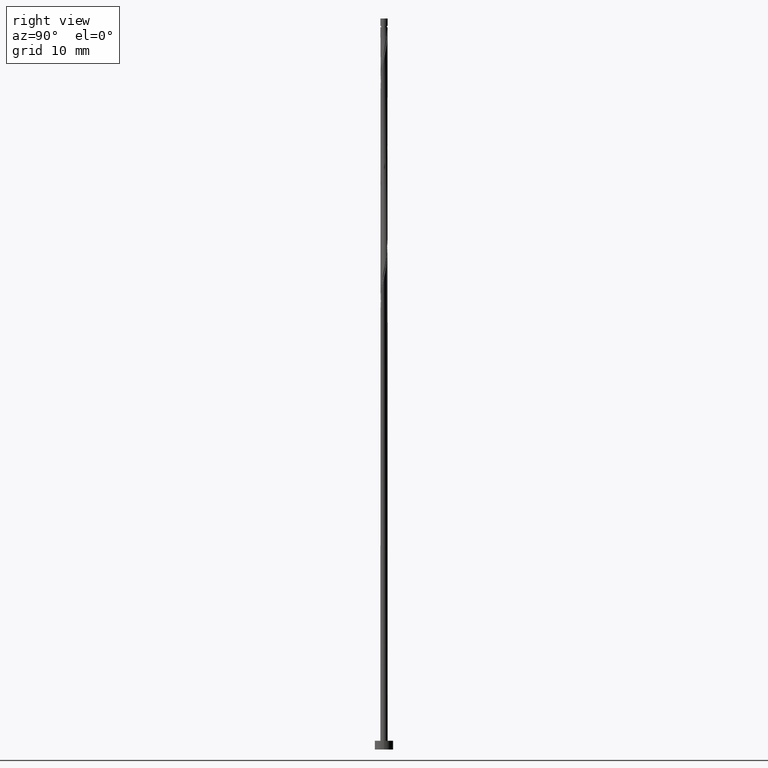
[diagram: clean part render]
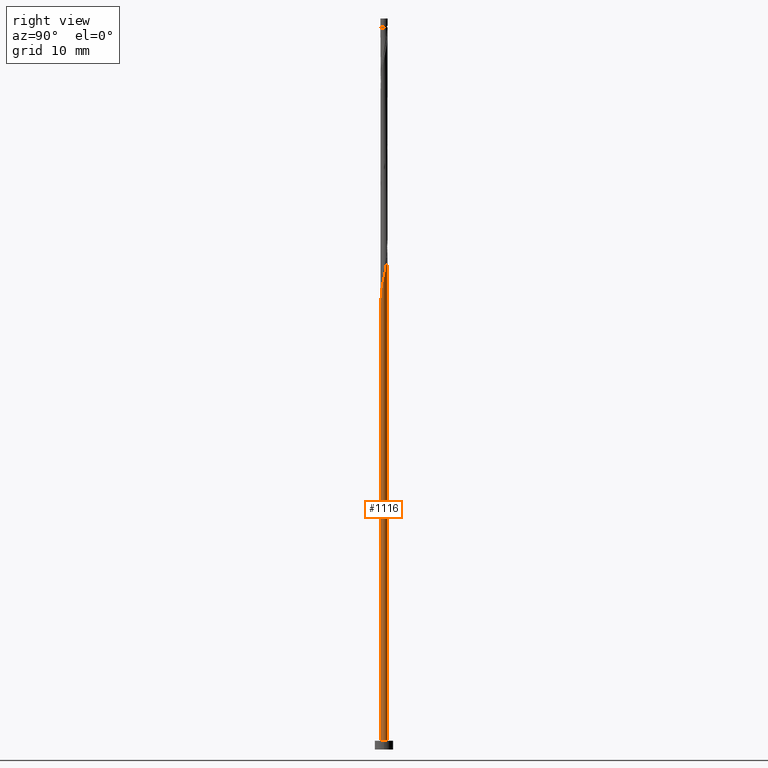
[diagram: same view with one face highlighted and labeled with its STEP entity id]
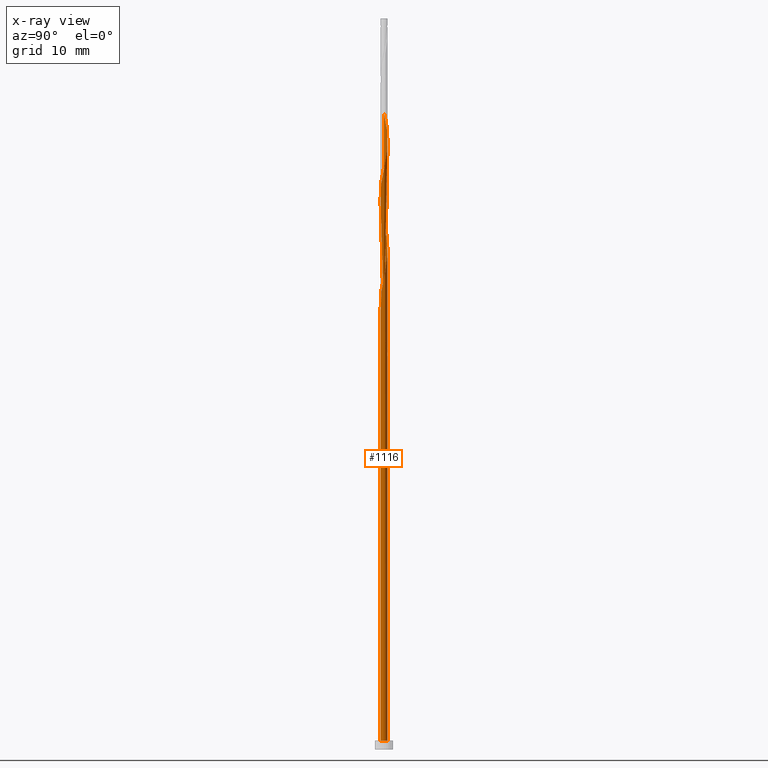
[diagram: x-ray of the same camera — body ghosted, the highlighted face saturated]
A machine part, right view. The second image highlights one B-rep face of the part: STEP entity #1116.
The next image is the same camera in x-ray: the body ghosted, the highlighted face saturated — about 0% of this face is hidden behind the body in this view.
In plain terms, the highlighted cylindrical surface (bore or boss wall) has radius 0.5 mm, axis along (-0, -0, -1).
Its self-contained STEP definition (entity closure, byte-faithful):
#13 = CARTESIAN_POINT ( 'NONE',  ( -0.01309852316351389420, 0.5075443130627871335, 83.38333333333332575 ) ) ;
#15 = AXIS2_PLACEMENT_3D ( 'NONE', #156, #516, #1207 ) ;
#19 = CARTESIAN_POINT ( 'NONE',  ( -0.2610881054719552674, 0.4264188096004513095, 54.63333333333332575 ) ) ;
#30 = CARTESIAN_POINT ( 'NONE',  ( 0.09949874371066202983, 0.4900000000000007683, 53.79999999999999716 ) ) ;
#36 = CIRCLE ( 'NONE', #121, 0.5000000000000000000 ) ;
#37 = CARTESIAN_POINT ( 'NONE',  ( -0.3362772466861007059, 0.3803819322636883271, 55.05000000000001137 ) ) ;
#43 = DIRECTION ( 'NONE',  ( -1.000000000000000000, 0.000000000000000000, 0.000000000000000000 ) ) ;
#48 = CARTESIAN_POINT ( 'NONE',  ( 0.07409163498720100494, 0.4944799587697403798, 67.96666666666666856 ) ) ;
#52 = CARTESIAN_POINT ( 'NONE',  ( -0.5021081091789604267, 0.07523461788412853790, 71.71666666666666856 ) ) ;
#53 = AXIS2_PLACEMENT_3D ( 'NONE', #169, #902, #175 ) ;
#68 = ORIENTED_EDGE ( 'NONE', *, *, #620, .T. ) ;
#73 = VERTEX_POINT ( 'NONE', #967 ) ;
#76 = CARTESIAN_POINT ( 'NONE',  ( 0.4329970070769391111, 0.2651158103430553137, 80.88333333333332575 ) ) ;
#80 = CARTESIAN_POINT ( 'NONE',  ( -0.3162091449211504868, -0.3972210690530860178, 74.21666666666671119 ) ) ;
#81 = VERTEX_POINT ( 'NONE', #341 ) ;
#88 = CARTESIAN_POINT ( 'NONE',  ( -0.4460955302404527867, 0.2424285027197316256, 85.88333333333335418 ) ) ;
#99 = DIRECTION ( 'NONE',  ( 0.000000000000000000, -0.000000000000000000, -1.000000000000000000 ) ) ;
#100 = CARTESIAN_POINT ( 'NONE',  ( 0.1612817931379155190, 0.4814156044766936260, 82.55000000000001137 ) ) ;
#119 = CARTESIAN_POINT ( 'NONE',  ( 0.01309852316351392196, 0.5075443130627870225, 54.21666666666666146 ) ) ;
#121 = AXIS2_PLACEMENT_3D ( 'NONE', #618, #99, #1048 ) ;
#142 = DIRECTION ( 'NONE',  ( -0.000000000000000000, -0.000000000000000000, -1.000000000000000000 ) ) ;
#147 = CIRCLE ( 'NONE', #53, 0.5000000000000000000 ) ;
#156 = CARTESIAN_POINT ( 'NONE',  ( 0.000000000000000000, 0.000000000000000000, 1.199999999999999956 ) ) ;
#169 = CARTESIAN_POINT ( 'NONE',  ( 0.000000000000000000, 0.000000000000000000, 1.199999999999999956 ) ) ;
#171 = EDGE_CURVE ( 'NONE', #1353, #1081, #1303, .T. ) ;
#175 = DIRECTION ( 'NONE',  ( 1.000000000000000000, 0.000000000000000000, 0.000000000000000000 ) ) ;
#182 = CARTESIAN_POINT ( 'NONE',  ( 0.4975590398240160028, 0.1010336722130053960, 80.04999999999998295 ) ) ;
#186 = CARTESIAN_POINT ( 'NONE',  ( -0.4741018197097065512, 0.1588315603019300748, 71.30000000000002558 ) ) ;
#195 = CARTESIAN_POINT ( 'NONE',  ( 0.4652780234504774182, 0.1830747412780303895, 65.46666666666666856 ) ) ;
#198 = CARTESIAN_POINT ( 'NONE',  ( 0.4741018197097065512, -0.1588315603019302691, 78.80000000000001137 ) ) ;
#203 = CARTESIAN_POINT ( 'NONE',  ( 0.4460955302404527867, -0.2424285027197316811, 63.38333333333333286 ) ) ;
#228 = CARTESIAN_POINT ( 'NONE',  ( -0.4652780234504771961, 0.1830747412780305838, 57.13333333333332575 ) ) ;
#243 = CARTESIAN_POINT ( 'NONE',  ( -0.2387454690295328086, 0.4393183367648896831, 55.46666666666666856 ) ) ;
#248 = CARTESIAN_POINT ( 'NONE',  ( -0.5000000000000006661, -4.855164127740446616E-16, 58.02776939948987689 ) ) ;
#256 = CARTESIAN_POINT ( 'NONE',  ( -0.4741018197097065512, 0.1588315603019300748, 56.30000000000001137 ) ) ;
#261 = CARTESIAN_POINT ( 'NONE',  ( -0.5000000000000007772, 5.434049081432574150E-16, 57.07223060051013164 ) ) ;
#266 = CARTESIAN_POINT ( 'NONE',  ( -0.4460955302404527867, 0.2424285027197316256, 70.88333333333332575 ) ) ;
#272 = CARTESIAN_POINT ( 'NONE',  ( -0.4975590398240160028, -0.1010336722130054932, 72.55000000000001137 ) ) ;
#300 = CARTESIAN_POINT ( 'NONE',  ( -0.4652780234504773071, -0.1830747412780305006, 57.96666666666666146 ) ) ;
#308 = CARTESIAN_POINT ( 'NONE',  ( -0.1612817931379152137, -0.4814156044766937370, 60.04999999999999716 ) ) ;
#329 = CARTESIAN_POINT ( 'NONE',  ( 0.2387454690295330029, 0.4393183367648896831, 82.13333333333335418 ) ) ;
#341 = CARTESIAN_POINT ( 'NONE',  ( -0.5000000000000000000, 0.000000000000000000, 1.199999999999999956 ) ) ;
#353 = CARTESIAN_POINT ( 'NONE',  ( -0.5000000000000000000, 0.000000000000000000, 100.0000000000000000 ) ) ;
#356 = ORIENTED_EDGE ( 'NONE', *, *, #781, .T. ) ;
#359 = CARTESIAN_POINT ( 'NONE',  ( -0.5000000000000006661, -4.855164127740446616E-16, 58.02776939948987689 ) ) ;
#362 = CARTESIAN_POINT ( 'NONE',  ( -0.5000000000000000000, 0.000000000000000000, 100.0000000000000000 ) ) ;
#367 = CARTESIAN_POINT ( 'NONE',  ( -0.4329970070769387780, 0.2651158103430555912, 56.71666666666666856 ) ) ;
#372 = CARTESIAN_POINT ( 'NONE',  ( 0.4329970070769391111, 0.2651158103430553137, 65.88333333333333997 ) ) ;
#376 = CARTESIAN_POINT ( 'NONE',  ( 0.4998335745014880205, 0.01289952716443851580, 64.63333333333333997 ) ) ;
#385 = ORIENTED_EDGE ( 'NONE', *, *, #171, .F. ) ;
#403 = CARTESIAN_POINT ( 'NONE',  ( -0.2387454690295328918, -0.4393183367648896831, 74.63333333333331154 ) ) ;
#410 = CARTESIAN_POINT ( 'NONE',  ( -0.5000000000000007772, -0.006450837166010229932, 57.10284623704924911 ) ) ;
#414 = CARTESIAN_POINT ( 'NONE',  ( 0.4998335745014880205, 0.01289952716443851580, 79.63333333333333997 ) ) ;
#420 = EDGE_CURVE ( 'NONE', #950, #838, #36, .T. ) ;
#440 = FACE_OUTER_BOUND ( 'NONE', #725, .T. ) ;
#472 = CARTESIAN_POINT ( 'NONE',  ( -0.1858989642578099122, 0.4724556869372144030, 69.21666666666666856 ) ) ;
#493 = CARTESIAN_POINT ( 'NONE',  ( 0.2610881054719552119, -0.4264188096004513095, 77.13333333333329733 ) ) ;
#497 = CARTESIAN_POINT ( 'NONE',  ( 0.01309852316351374675, -0.5075443130627872446, 75.88333333333333997 ) ) ;
#502 = CARTESIAN_POINT ( 'NONE',  ( 0.3746030759990447989, 0.3311684396980708045, 81.29999999999999716 ) ) ;
#506 = CARTESIAN_POINT ( 'NONE',  ( -0.3362772466861007059, 0.3803819322636883271, 70.04999999999998295 ) ) ;
#507 = CARTESIAN_POINT ( 'NONE',  ( 0.1858989642578097734, -0.4724556869372145695, 76.71666666666665435 ) ) ;
#508 = ORIENTED_EDGE ( 'NONE', *, *, #637, .F. ) ;
#516 = DIRECTION ( 'NONE',  ( 0.000000000000000000, 0.000000000000000000, 1.000000000000000000 ) ) ;
#522 = CARTESIAN_POINT ( 'NONE',  ( -0.5000000000000007772, 5.434049081432574150E-16, 57.07223060051013164 ) ) ;
#523 = CARTESIAN_POINT ( 'NONE',  ( -0.4998335745014880205, -0.01289952716443847763, 57.13333333333333997 ) ) ;
#529 = CARTESIAN_POINT ( 'NONE',  ( 0.07409163498720100494, 0.4944799587697403798, 82.96666666666666856 ) ) ;
#548 = CARTESIAN_POINT ( 'NONE',  ( -0.3911863884632766908, 0.3114052174917099070, 85.46666666666666856 ) ) ;
#555 = CARTESIAN_POINT ( 'NONE',  ( -0.3746030759990446324, 0.3311684396980706935, 56.29999999999999716 ) ) ;
#560 = CARTESIAN_POINT ( 'NONE',  ( -0.5000000000000005551, 0.006450837166012286447, 57.99715376295075231 ) ) ;
#565 = ORIENTED_EDGE ( 'NONE', *, *, #663, .F. ) ;
#571 = CARTESIAN_POINT ( 'NONE',  ( 0.2387454690295330029, 0.4393183367648896831, 67.13333333333333997 ) ) ;
#579 = CARTESIAN_POINT ( 'NONE',  ( 0.5021081091789604267, -0.07523461788412882933, 64.21666666666666856 ) ) ;
#611 = CARTESIAN_POINT ( 'NONE',  ( 0.09949874371066201595, 0.4900000000000007683, 53.79999999999999716 ) ) ;
#618 = CARTESIAN_POINT ( 'NONE',  ( 0.000000000000000000, 0.000000000000000000, 53.80000000000000426 ) ) ;
#619 = CARTESIAN_POINT ( 'NONE',  ( 0.5021081091789604267, -0.07523461788412882933, 79.21666666666668277 ) ) ;
#620 = EDGE_CURVE ( 'NONE', #1088, #81, #1192, .T. ) ;
#622 = CARTESIAN_POINT ( 'NONE',  ( 0.4741018197097065512, -0.1588315603019302691, 63.79999999999999716 ) ) ;
#637 = EDGE_CURVE ( 'NONE', #1081, #838, #904, .T. ) ;
#645 = CARTESIAN_POINT ( 'NONE',  ( -0.1858989642578099122, 0.4724556869372144030, 54.21666666666667567 ) ) ;
#663 = EDGE_CURVE ( 'NONE', #950, #1088, #1016, .T. ) ;
#673 = CARTESIAN_POINT ( 'NONE',  ( -0.5000000000000007772, 0.08152718591022869998, 56.68530303938106840 ) ) ;
#678 = CARTESIAN_POINT ( 'NONE',  ( 0.3746030759990447989, 0.3311684396980708045, 66.29999999999998295 ) ) ;
#687 = CARTESIAN_POINT ( 'NONE',  ( -0.07409163498720072738, -0.4944799587697403798, 60.46666666666666146 ) ) ;
#693 = CARTESIAN_POINT ( 'NONE',  ( 0.09949874371066182166, -0.4900000000000008238, 61.29999999999999716 ) ) ;
#708 = ORIENTED_EDGE ( 'NONE', *, *, #810, .F. ) ;
#711 = CARTESIAN_POINT ( 'NONE',  ( 0.3362772466861005394, -0.3803819322636883271, 77.54999999999999716 ) ) ;
#723 = CARTESIAN_POINT ( 'NONE',  ( -0.07409163498720072738, -0.4944799587697403798, 75.46666666666666856 ) ) ;
#725 = EDGE_LOOP ( 'NONE', ( #385, #708, #68, #356, #803, #1317, #565, #866, #508 ) ) ;
#727 = CARTESIAN_POINT ( 'NONE',  ( -0.4741018197097065512, 0.1588315603019300748, 86.29999999999999716 ) ) ;
#733 = CARTESIAN_POINT ( 'NONE',  ( 0.1858989642578097734, -0.4724556869372145695, 61.71666666666666146 ) ) ;
#756 = CARTESIAN_POINT ( 'NONE',  ( -0.09949874371066179390, 0.4900000000000008238, 83.80000000000002558 ) ) ;
#777 = CARTESIAN_POINT ( 'NONE',  ( -0.3911863884632766908, 0.3114052174917099070, 55.46666666666667567 ) ) ;
#780 = DIRECTION ( 'NONE',  ( -0.000000000000000000, -0.000000000000000000, -1.000000000000000000 ) ) ;
#781 = EDGE_CURVE ( 'NONE', #81, #73, #832, .T. ) ;
#783 = CARTESIAN_POINT ( 'NONE',  ( -0.07409163498720063024, 0.4944799587697402687, 54.63333333333333286 ) ) ;
#788 = CARTESIAN_POINT ( 'NONE',  ( -0.2610881054719552674, 0.4264188096004513095, 69.63333333333335418 ) ) ;
#796 = CARTESIAN_POINT ( 'NONE',  ( -0.4998335745014880205, -0.01289952716443847763, 72.13333333333333997 ) ) ;
#798 = CARTESIAN_POINT ( 'NONE',  ( -0.5000000000000007772, -9.803696796398973244E-17, 87.07223060051012453 ) ) ;
#803 = ORIENTED_EDGE ( 'NONE', *, *, #1134, .T. ) ;
#810 = EDGE_CURVE ( 'NONE', #1088, #1353, #1160, .T. ) ;
#813 = VECTOR ( 'NONE', #995, 1000.000000000000000 ) ;
#823 = CARTESIAN_POINT ( 'NONE',  ( -0.1612817931379152137, -0.4814156044766937370, 75.05000000000001137 ) ) ;
#824 = VECTOR ( 'NONE', #780, 1000.000000000000000 ) ;
#831 = CARTESIAN_POINT ( 'NONE',  ( -0.4975590398240160028, -0.1010336722130054932, 57.54999999999999716 ) ) ;
#832 = CIRCLE ( 'NONE', #15, 0.5000000000000000000 ) ;
#838 = VERTEX_POINT ( 'NONE', #611 ) ;
#866 = ORIENTED_EDGE ( 'NONE', *, *, #420, .T. ) ;
#873 = AXIS2_PLACEMENT_3D ( 'NONE', #881, #142, #43 ) ;
#881 = CARTESIAN_POINT ( 'NONE',  ( 0.000000000000000000, 0.000000000000000000, 100.0000000000000000 ) ) ;
#894 = CARTESIAN_POINT ( 'NONE',  ( -0.5000000000000007772, 5.434049081432574150E-16, 57.07223060051013164 ) ) ;
#902 = DIRECTION ( 'NONE',  ( 0.000000000000000000, 0.000000000000000000, 1.000000000000000000 ) ) ;
#904 =( BOUNDED_CURVE ( )  B_SPLINE_CURVE ( 2, ( #359, #560, #1305, #1299, #228, #367, #555, #1197, #243, #986, #783, #119, #30 ),
 .UNSPECIFIED., .F., .T. ) 
 B_SPLINE_CURVE_WITH_KNOTS ( ( 3, 2, 2, 2, 2, 2, 3 ),
 ( 0.9295248053855293957, 0.9305555555555555802, 0.9444444444444444198, 0.9583333333333333703, 0.9722222222222222099, 0.9861111111111111605, 1.000000000000000000 ),
 .UNSPECIFIED. ) 
 CURVE ( )  GEOMETRIC_REPRESENTATION_ITEM ( )  RATIONAL_B_SPLINE_CURVE ( ( 0.9071930855141279171, 0.9080659294509753066, 0.9090909090909150558, 0.8952797754656496299, 0.9090909090909150558, 0.8952797754656496299, 0.9090909090909150558, 0.8952797754656496299, 0.9090909090909150558, 0.8952797754656496299, 0.9090909090909150558, 0.8952797754656496299, 0.9090909090909150558 ) ) 
 REPRESENTATION_ITEM ( '' )  );
#929 = CARTESIAN_POINT ( 'NONE',  ( 0.2610881054719552119, -0.4264188096004513095, 62.13333333333333997 ) ) ;
#940 = CARTESIAN_POINT ( 'NONE',  ( -0.3162091449211504868, -0.3972210690530860178, 59.21666666666666856 ) ) ;
#945 = CARTESIAN_POINT ( 'NONE',  ( -0.5000000000000007772, -9.803696796398973244E-17, 87.07223060051012453 ) ) ;
#949 = CARTESIAN_POINT ( 'NONE',  ( -0.4329970070769388890, -0.2651158103430555912, 58.38333333333332575 ) ) ;
#950 = VERTEX_POINT ( 'NONE', #1301 ) ;
#955 = CARTESIAN_POINT ( 'NONE',  ( -0.1858989642578099122, 0.4724556869372144030, 84.21666666666665435 ) ) ;
#964 = CARTESIAN_POINT ( 'NONE',  ( 0.3162091449211505423, 0.3972210690530860178, 81.71666666666665435 ) ) ;
#967 = CARTESIAN_POINT ( 'NONE',  ( 0.5000000000000000000, 0.000000000000000000, 1.199999999999999956 ) ) ;
#986 = CARTESIAN_POINT ( 'NONE',  ( -0.1612817931379151581, 0.4814156044766936260, 55.04999999999999716 ) ) ;
#989 = CARTESIAN_POINT ( 'NONE',  ( -0.09949874371066179390, 0.4900000000000008793, 53.79999999999999716 ) ) ;
#995 = DIRECTION ( 'NONE',  ( -0.000000000000000000, -0.000000000000000000, -1.000000000000000000 ) ) ;
#1001 = CARTESIAN_POINT ( 'NONE',  ( 0.1612817931379155190, 0.4814156044766936260, 67.54999999999999716 ) ) ;
#1010 = CARTESIAN_POINT ( 'NONE',  ( -0.01309852316351389420, 0.5075443130627871335, 68.38333333333332575 ) ) ;
#1016 =( BOUNDED_CURVE ( )  B_SPLINE_CURVE ( 2, ( #989, #645, #19, #37, #777, #1202, #256, #673, #894 ),
 .UNSPECIFIED., .F., .T. ) 
 B_SPLINE_CURVE_WITH_KNOTS ( ( 3, 2, 2, 2, 3 ),
 ( 0.000000000000000000, 0.01388888888888883955, 0.02777777777777779011, 0.04166666666666662966, 0.05452480538552906958 ),
 .UNSPECIFIED. ) 
 CURVE ( )  GEOMETRIC_REPRESENTATION_ITEM ( )  RATIONAL_B_SPLINE_CURVE ( ( 0.9090909090909153889, 0.8952797754656498519, 0.9090909090909153889, 0.8952797754656498519, 0.9090909090909153889, 0.8952797754656498519, 0.9090909090909153889, 0.8963047551055899342, 0.9071930855141276950 ) ) 
 REPRESENTATION_ITEM ( '' )  );
#1033 = CARTESIAN_POINT ( 'NONE',  ( 0.4652780234504774182, 0.1830747412780303895, 80.46666666666668277 ) ) ;
#1038 = CARTESIAN_POINT ( 'NONE',  ( -0.4329970070769388890, -0.2651158103430555912, 73.38333333333331154 ) ) ;
#1046 = CARTESIAN_POINT ( 'NONE',  ( 0.3911863884632766908, -0.3114052174917099070, 62.96666666666668277 ) ) ;
#1048 = DIRECTION ( 'NONE',  ( -1.000000000000000000, 0.000000000000000000, 0.000000000000000000 ) ) ;
#1051 = CARTESIAN_POINT ( 'NONE',  ( 0.4975590398240160028, 0.1010336722130053960, 65.04999999999999716 ) ) ;
#1081 = VERTEX_POINT ( 'NONE', #248 ) ;
#1088 = VERTEX_POINT ( 'NONE', #522 ) ;
#1093 = CYLINDRICAL_SURFACE ( 'NONE', #873, 0.5000000000000000000 ) ;
#1108 = CARTESIAN_POINT ( 'NONE',  ( 0.3162091449211505423, 0.3972210690530860178, 66.71666666666666856 ) ) ;
#1116 = ADVANCED_FACE ( 'NONE', ( #440 ), #1093, .T. ) ;
#1122 = CARTESIAN_POINT ( 'NONE',  ( -0.4652780234504773071, -0.1830747412780305006, 72.96666666666665435 ) ) ;
#1129 = CARTESIAN_POINT ( 'NONE',  ( -0.5000000000000011102, 0.08152718591022742323, 86.68530303938103998 ) ) ;
#1134 = EDGE_CURVE ( 'NONE', #73, #81, #147, .T. ) ;
#1148 = CARTESIAN_POINT ( 'NONE',  ( -0.2387454690295328918, -0.4393183367648896831, 59.63333333333333286 ) ) ;
#1157 = CARTESIAN_POINT ( 'NONE',  ( 0.3362772466861005394, -0.3803819322636883271, 62.55000000000001137 ) ) ;
#1160 =( BOUNDED_CURVE ( )  B_SPLINE_CURVE ( 2, ( #261, #410, #523, #831, #300, #949, #1252, #940, #1148, #308, #687, #1312, #693, #733, #929, #1157, #1046, #203, #622, #579, #376, #1051, #195, #372, #678, #1108, #571, #1001, #48, #1010, #1220, #472, #788, #506, #1214, #266, #186, #52, #796, #272, #1122, #1038, #1345, #80, #403, #823, #723, #497, #1339, #507, #493, #711, #1359, #1249, #198, #619, #414, #182, #1033, #76, #502, #964, #329, #100, #529, #13, #756, #955, #1367, #1278, #548, #88, #727, #1129, #798 ),
 .UNSPECIFIED., .F., .T. ) 
 B_SPLINE_CURVE_WITH_KNOTS ( ( 3, 2, 2, 2, 2, 2, 2, 2, 2, 2, 2, 2, 2, 2, 2, 2, 2, 2, 2, 2, 2, 2, 2, 2, 2, 2, 2, 2, 2, 2, 2, 2, 2, 2, 2, 2, 2, 3 ),
 ( 0.05452480538552907652, 0.05555555555555558023, 0.06944444444444441977, 0.08333333333333337034, 0.09722222222222220989, 0.1111111111111111605, 0.1250000000000000000, 0.1388888888888888395, 0.1527777777777777901, 0.1666666666666666297, 0.1805555555555555802, 0.1944444444444444198, 0.2083333333333333703, 0.2222222222222222099, 0.2361111111111111605, 0.2500000000000000000, 0.2638888888888888395, 0.2777777777777777901, 0.2916666666666666297, 0.3055555555555555802, 0.3194444444444444198, 0.3333333333333333703, 0.3472222222222222099, 0.3611111111111111605, 0.3750000000000000000, 0.3888888888888888395, 0.4027777777777777901, 0.4166666666666666297, 0.4305555555555555802, 0.4444444444444444198, 0.4583333333333333703, 0.4722222222222222099, 0.4861111111111111605, 0.5000000000000000000, 0.5138888888888888395, 0.5277777777777777901, 0.5416666666666667407, 0.5545248053855292847 ),
 .UNSPECIFIED. ) 
 CURVE ( )  GEOMETRIC_REPRESENTATION_ITEM ( )  RATIONAL_B_SPLINE_CURVE ( ( 0.9071930855141276950, 0.9080659294509753066, 0.9090909090909153889, 0.8952797754656498519, 0.9090909090909153889, 0.8952797754656498519, 0.9090909090909153889, 0.8952797754656498519, 0.9090909090909153889, 0.8952797754656498519, 0.9090909090909153889, 0.8952797754656498519, 0.9090909090909153889, 0.8952797754656498519, 0.9090909090909153889, 0.8952797754656498519, 0.9090909090909153889, 0.8952797754656498519, 0.9090909090909153889, 0.8952797754656498519, 0.9090909090909153889, 0.8952797754656498519, 0.9090909090909153889, 0.8952797754656498519, 0.9090909090909153889, 0.8952797754656498519, 0.9090909090909153889, 0.8952797754656498519, 0.9090909090909153889, 0.8952797754656498519, 0.9090909090909153889, 0.8952797754656498519, 0.9090909090909153889, 0.8952797754656498519, 0.9090909090909153889, 0.8952797754656498519, 0.9090909090909153889, 0.8952797754656498519, 0.9090909090909153889, 0.8952797754656498519, 0.9090909090909153889, 0.8952797754656498519, 0.9090909090909153889, 0.8952797754656498519, 0.9090909090909153889, 0.8952797754656498519, 0.9090909090909153889, 0.8952797754656498519, 0.9090909090909153889, 0.8952797754656498519, 0.9090909090909153889, 0.8952797754656498519, 0.9090909090909153889, 0.8952797754656498519, 0.9090909090909153889, 0.8952797754656498519, 0.9090909090909153889, 0.8952797754656498519, 0.9090909090909153889, 0.8952797754656498519, 0.9090909090909153889, 0.8952797754656498519, 0.9090909090909153889, 0.8952797754656498519, 0.9090909090909153889, 0.8952797754656498519, 0.9090909090909153889, 0.8952797754656498519, 0.9090909090909153889, 0.8952797754656498519, 0.9090909090909153889, 0.8952797754656498519, 0.9090909090909153889, 0.8963047551055898232, 0.9071930855141279171 ) ) 
 REPRESENTATION_ITEM ( '' )  );
#1192 = LINE ( 'NONE', #353, #813 ) ;
#1197 = CARTESIAN_POINT ( 'NONE',  ( -0.3162091449211504313, 0.3972210690530858512, 55.88333333333333286 ) ) ;
#1202 = CARTESIAN_POINT ( 'NONE',  ( -0.4460955302404527867, 0.2424285027197316256, 55.88333333333333997 ) ) ;
#1207 = DIRECTION ( 'NONE',  ( 1.000000000000000000, 0.000000000000000000, 0.000000000000000000 ) ) ;
#1214 = CARTESIAN_POINT ( 'NONE',  ( -0.3911863884632766908, 0.3114052174917099070, 70.46666666666668277 ) ) ;
#1220 = CARTESIAN_POINT ( 'NONE',  ( -0.09949874371066179390, 0.4900000000000008238, 68.79999999999996874 ) ) ;
#1249 = CARTESIAN_POINT ( 'NONE',  ( 0.4460955302404527867, -0.2424285027197316811, 78.38333333333333997 ) ) ;
#1252 = CARTESIAN_POINT ( 'NONE',  ( -0.3746030759990447989, -0.3311684396980705825, 58.80000000000001137 ) ) ;
#1278 = CARTESIAN_POINT ( 'NONE',  ( -0.3362772466861007059, 0.3803819322636883271, 85.04999999999998295 ) ) ;
#1299 = CARTESIAN_POINT ( 'NONE',  ( -0.4975590398240158918, 0.1010336722130055070, 57.55000000000001137 ) ) ;
#1301 = CARTESIAN_POINT ( 'NONE',  ( -0.09949874371066178003, 0.4900000000000008793, 53.79999999999999716 ) ) ;
#1303 = LINE ( 'NONE', #362, #824 ) ;
#1305 = CARTESIAN_POINT ( 'NONE',  ( -0.4998335745014880205, 0.01289952716443853141, 57.96666666666667567 ) ) ;
#1312 = CARTESIAN_POINT ( 'NONE',  ( 0.01309852316351374675, -0.5075443130627872446, 60.88333333333334707 ) ) ;
#1317 = ORIENTED_EDGE ( 'NONE', *, *, #620, .F. ) ;
#1339 = CARTESIAN_POINT ( 'NONE',  ( 0.09949874371066182166, -0.4900000000000008238, 76.30000000000002558 ) ) ;
#1345 = CARTESIAN_POINT ( 'NONE',  ( -0.3746030759990447989, -0.3311684396980705825, 73.80000000000001137 ) ) ;
#1353 = VERTEX_POINT ( 'NONE', #945 ) ;
#1359 = CARTESIAN_POINT ( 'NONE',  ( 0.3911863884632766908, -0.3114052174917099070, 77.96666666666665435 ) ) ;
#1367 = CARTESIAN_POINT ( 'NONE',  ( -0.2610881054719552674, 0.4264188096004513095, 84.63333333333332575 ) ) ;